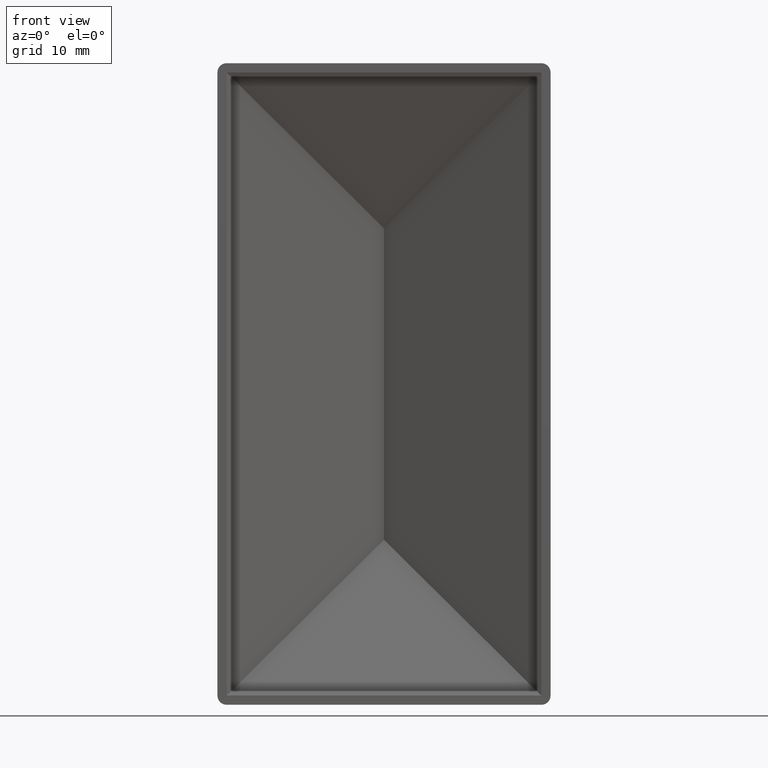
[diagram: clean part render]
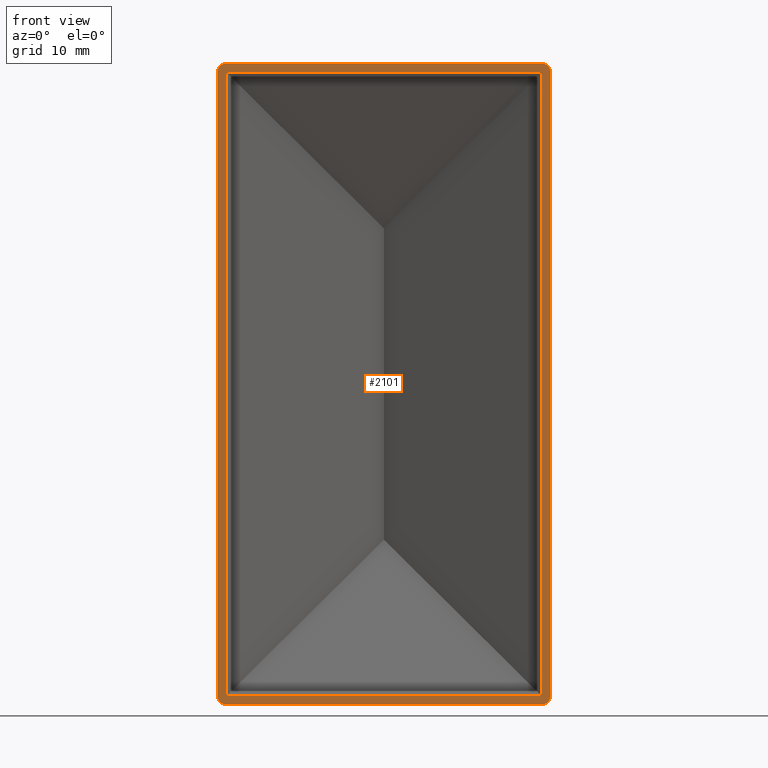
[diagram: same view with one face highlighted and labeled with its STEP entity id]
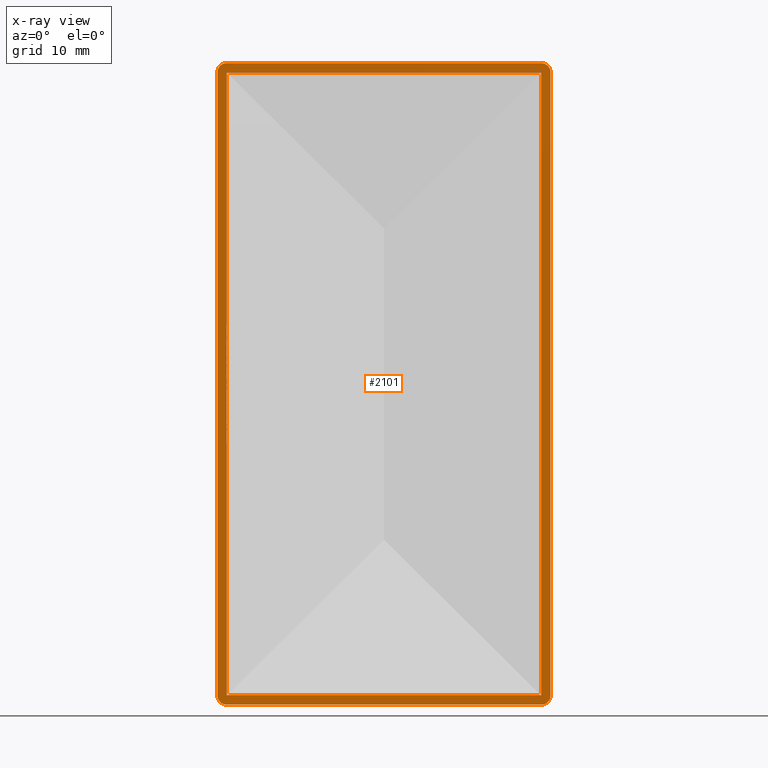
[diagram: x-ray of the same camera — body ghosted, the highlighted face saturated]
A machine part, front view. The second image highlights one B-rep face of the part: STEP entity #2101.
The next image is the same camera in x-ray: the body ghosted, the highlighted face saturated — about 0% of this face is hidden behind the body in this view.
In plain terms, the highlighted planar face has unit normal (0, 1, 0).
Its self-contained STEP definition (entity closure, byte-faithful):
#48 = VECTOR ( 'NONE', #10270, 1000.000000000000000 ) ;
#65 = EDGE_LOOP ( 'NONE', ( #5537, #2493, #10293, #5082, #598, #8248, #830, #9594 ) ) ;
#99 = CARTESIAN_POINT ( 'NONE',  ( -25.50000000000000000, 0.000000000000000000, -50.49999999999998579 ) ) ;
#395 = ORIENTED_EDGE ( 'NONE', *, *, #929, .T. ) ;
#445 = CARTESIAN_POINT ( 'NONE',  ( -25.49999999999998934, 0.000000000000000000, 50.50000000000000711 ) ) ;
#454 = CARTESIAN_POINT ( 'NONE',  ( 25.50000000000001066, 0.000000000000000000, 50.50000000000000711 ) ) ;
#598 = ORIENTED_EDGE ( 'NONE', *, *, #4568, .F. ) ;
#628 = DIRECTION ( 'NONE',  ( -0.000000000000000000, -1.000000000000000000, -0.000000000000000000 ) ) ;
#647 = DIRECTION ( 'NONE',  ( -1.000000000000000000, 0.000000000000000000, 0.000000000000000000 ) ) ;
#745 = LINE ( 'NONE', #2697, #5236 ) ;
#830 = ORIENTED_EDGE ( 'NONE', *, *, #12287, .F. ) ;
#929 = EDGE_CURVE ( 'NONE', #8494, #4871, #9713, .T. ) ;
#1163 = DIRECTION ( 'NONE',  ( 0.000000000000000000, 0.000000000000000000, 1.000000000000000000 ) ) ;
#1573 = PLANE ( 'NONE',  #6129 ) ;
#1616 = DIRECTION ( 'NONE',  ( 0.000000000000000000, 1.000000000000000000, 0.000000000000000000 ) ) ;
#1641 = VERTEX_POINT ( 'NONE', #2495 ) ;
#1699 = DIRECTION ( 'NONE',  ( 1.000802005371235128E-16, 0.000000000000000000, 1.000000000000000000 ) ) ;
#1704 = AXIS2_PLACEMENT_3D ( 'NONE', #6059, #13797, #9389 ) ;
#1752 = FACE_OUTER_BOUND ( 'NONE', #65, .T. ) ;
#1924 = CARTESIAN_POINT ( 'NONE',  ( 25.50000000000001421, 0.000000000000000000, 52.00000000000001421 ) ) ;
#2101 = ADVANCED_FACE ( 'NONE', ( #3105, #1752 ), #1573, .F. ) ;
#2359 = CIRCLE ( 'NONE', #8858, 1.500000000000001332 ) ;
#2493 = ORIENTED_EDGE ( 'NONE', *, *, #12487, .T. ) ;
#2495 = CARTESIAN_POINT ( 'NONE',  ( 27.00000000000000000, 0.000000000000000000, -50.49999999999998579 ) ) ;
#2697 = CARTESIAN_POINT ( 'NONE',  ( -27.00000000000000000, 0.000000000000000000, -51.99999999999998579 ) ) ;
#2824 = DIRECTION ( 'NONE',  ( -6.938893903907222067E-15, 0.000000000000000000, 1.000000000000000000 ) ) ;
#3043 = CARTESIAN_POINT ( 'NONE',  ( 27.00000000000000000, 0.000000000000000000, -51.99999999999998579 ) ) ;
#3105 = FACE_BOUND ( 'NONE', #5251, .T. ) ;
#3167 = CARTESIAN_POINT ( 'NONE',  ( -26.99999999999998934, 0.000000000000000000, 50.50000000000000711 ) ) ;
#3172 = VERTEX_POINT ( 'NONE', #11969 ) ;
#3304 = VECTOR ( 'NONE', #8624, 1000.000000000000000 ) ;
#3781 = CARTESIAN_POINT ( 'NONE',  ( 27.00000000000001421, 0.000000000000000000, 50.49999999999998579 ) ) ;
#3869 = CARTESIAN_POINT ( 'NONE',  ( -27.00000000000000000, 0.000000000000000000, -51.99999999999998579 ) ) ;
#4258 = CARTESIAN_POINT ( 'NONE',  ( -27.00000000000000000, 0.000000000000000000, -50.49999999999998579 ) ) ;
#4503 = DIRECTION ( 'NONE',  ( -1.334402673828313339E-16, 0.000000000000000000, -1.000000000000000000 ) ) ;
#4507 = VERTEX_POINT ( 'NONE', #4258 ) ;
#4568 = EDGE_CURVE ( 'NONE', #3172, #6622, #10709, .T. ) ;
#4590 = CARTESIAN_POINT ( 'NONE',  ( 25.50000000000000000, 0.000000000000000000, -51.99999999999998579 ) ) ;
#4853 = CARTESIAN_POINT ( 'NONE',  ( 0.000000000000000000, 0.000000000000000000, 0.000000000000000000 ) ) ;
#4871 = VERTEX_POINT ( 'NONE', #10855 ) ;
#5082 = ORIENTED_EDGE ( 'NONE', *, *, #7148, .T. ) ;
#5089 = DIRECTION ( 'NONE',  ( -1.000000000000000000, -0.000000000000000000, -0.000000000000000000 ) ) ;
#5151 = AXIS2_PLACEMENT_3D ( 'NONE', #8204, #628, #2824 ) ;
#5236 = VECTOR ( 'NONE', #1699, 1000.000000000000000 ) ;
#5244 = VERTEX_POINT ( 'NONE', #13712 ) ;
#5251 = EDGE_LOOP ( 'NONE', ( #395, #6113, #6838, #8147 ) ) ;
#5537 = ORIENTED_EDGE ( 'NONE', *, *, #12455, .F. ) ;
#5592 = VECTOR ( 'NONE', #4503, 1000.000000000000000 ) ;
#5683 = VECTOR ( 'NONE', #647, 1000.000000000000000 ) ;
#5942 = EDGE_CURVE ( 'NONE', #4871, #13108, #6185, .T. ) ;
#6059 = CARTESIAN_POINT ( 'NONE',  ( -25.49999999999998934, 0.000000000000000000, 50.50000000000000711 ) ) ;
#6113 = ORIENTED_EDGE ( 'NONE', *, *, #5942, .T. ) ;
#6129 = AXIS2_PLACEMENT_3D ( 'NONE', #4853, #1616, #9344 ) ;
#6185 = LINE ( 'NONE', #7237, #5683 ) ;
#6395 = CARTESIAN_POINT ( 'NONE',  ( -25.50000000000000000, 0.000000000000000000, -51.99999999999998579 ) ) ;
#6449 = EDGE_CURVE ( 'NONE', #4507, #13740, #2359, .T. ) ;
#6455 = CIRCLE ( 'NONE', #11530, 1.500000000000001332 ) ;
#6493 = CARTESIAN_POINT ( 'NONE',  ( -26.99999999999998934, 0.000000000000000000, 52.00000000000001421 ) ) ;
#6525 = CARTESIAN_POINT ( 'NONE',  ( -25.50000000000000000, 0.000000000000000000, -50.49999999999998579 ) ) ;
#6622 = VERTEX_POINT ( 'NONE', #1924 ) ;
#6650 = VERTEX_POINT ( 'NONE', #3781 ) ;
#6653 = VERTEX_POINT ( 'NONE', #445 ) ;
#6838 = ORIENTED_EDGE ( 'NONE', *, *, #13937, .T. ) ;
#7108 = LINE ( 'NONE', #3043, #3304 ) ;
#7148 = EDGE_CURVE ( 'NONE', #6650, #6622, #9612, .T. ) ;
#7237 = CARTESIAN_POINT ( 'NONE',  ( -27.00000000000000000, 0.000000000000000000, -50.49999999999998579 ) ) ;
#7590 = DIRECTION ( 'NONE',  ( 1.000000000000000000, 0.000000000000000000, 0.000000000000000000 ) ) ;
#7833 = VECTOR ( 'NONE', #8605, 1000.000000000000000 ) ;
#8147 = ORIENTED_EDGE ( 'NONE', *, *, #11897, .T. ) ;
#8204 = CARTESIAN_POINT ( 'NONE',  ( 25.50000000000001066, 0.000000000000000000, 50.50000000000000711 ) ) ;
#8248 = ORIENTED_EDGE ( 'NONE', *, *, #9150, .T. ) ;
#8325 = CARTESIAN_POINT ( 'NONE',  ( 25.50000000000000000, 0.000000000000000000, -50.49999999999998579 ) ) ;
#8494 = VERTEX_POINT ( 'NONE', #454 ) ;
#8605 = DIRECTION ( 'NONE',  ( 1.000000000000000000, -0.000000000000000000, 0.000000000000000000 ) ) ;
#8624 = DIRECTION ( 'NONE',  ( -1.334402673828313339E-16, -0.000000000000000000, -1.000000000000000000 ) ) ;
#8773 = VERTEX_POINT ( 'NONE', #4590 ) ;
#8857 = LINE ( 'NONE', #11241, #48 ) ;
#8858 = AXIS2_PLACEMENT_3D ( 'NONE', #99, #10191, #1163 ) ;
#9150 = EDGE_CURVE ( 'NONE', #3172, #5244, #14081, .T. ) ;
#9344 = DIRECTION ( 'NONE',  ( 0.000000000000000000, -0.000000000000000000, 1.000000000000000000 ) ) ;
#9389 = DIRECTION ( 'NONE',  ( 0.000000000000000000, 0.000000000000000000, 1.000000000000000000 ) ) ;
#9594 = ORIENTED_EDGE ( 'NONE', *, *, #6449, .T. ) ;
#9612 = CIRCLE ( 'NONE', #5151, 1.500000000000001332 ) ;
#9713 = LINE ( 'NONE', #11030, #5592 ) ;
#9740 = LINE ( 'NONE', #3167, #7833 ) ;
#10191 = DIRECTION ( 'NONE',  ( -0.000000000000000000, -1.000000000000000000, -0.000000000000000000 ) ) ;
#10270 = DIRECTION ( 'NONE',  ( 1.000802005371235251E-16, -0.000000000000000000, 1.000000000000000000 ) ) ;
#10293 = ORIENTED_EDGE ( 'NONE', *, *, #13706, .F. ) ;
#10560 = DIRECTION ( 'NONE',  ( -0.000000000000000000, -1.000000000000000000, -0.000000000000000000 ) ) ;
#10709 = LINE ( 'NONE', #6493, #11403 ) ;
#10770 = VECTOR ( 'NONE', #5089, 1000.000000000000000 ) ;
#10855 = CARTESIAN_POINT ( 'NONE',  ( 25.50000000000000000, 0.000000000000000000, -50.49999999999998579 ) ) ;
#11030 = CARTESIAN_POINT ( 'NONE',  ( 25.50000000000000000, 0.000000000000000000, -51.99999999999998579 ) ) ;
#11241 = CARTESIAN_POINT ( 'NONE',  ( -25.50000000000000000, 0.000000000000000000, -51.99999999999998579 ) ) ;
#11403 = VECTOR ( 'NONE', #7590, 1000.000000000000000 ) ;
#11530 = AXIS2_PLACEMENT_3D ( 'NONE', #8325, #10560, #12644 ) ;
#11897 = EDGE_CURVE ( 'NONE', #6653, #8494, #9740, .T. ) ;
#11969 = CARTESIAN_POINT ( 'NONE',  ( -25.49999999999998934, 0.000000000000000000, 52.00000000000001421 ) ) ;
#12171 = LINE ( 'NONE', #3869, #10770 ) ;
#12287 = EDGE_CURVE ( 'NONE', #4507, #5244, #745, .T. ) ;
#12455 = EDGE_CURVE ( 'NONE', #8773, #13740, #12171, .T. ) ;
#12487 = EDGE_CURVE ( 'NONE', #8773, #1641, #6455, .T. ) ;
#12644 = DIRECTION ( 'NONE',  ( 0.000000000000000000, 0.000000000000000000, 1.000000000000000000 ) ) ;
#13108 = VERTEX_POINT ( 'NONE', #6525 ) ;
#13706 = EDGE_CURVE ( 'NONE', #6650, #1641, #7108, .T. ) ;
#13712 = CARTESIAN_POINT ( 'NONE',  ( -26.99999999999998934, 0.000000000000000000, 50.49999999999998579 ) ) ;
#13740 = VERTEX_POINT ( 'NONE', #6395 ) ;
#13797 = DIRECTION ( 'NONE',  ( -0.000000000000000000, -1.000000000000000000, -0.000000000000000000 ) ) ;
#13937 = EDGE_CURVE ( 'NONE', #13108, #6653, #8857, .T. ) ;
#14081 = CIRCLE ( 'NONE', #1704, 1.500000000000001332 ) ;